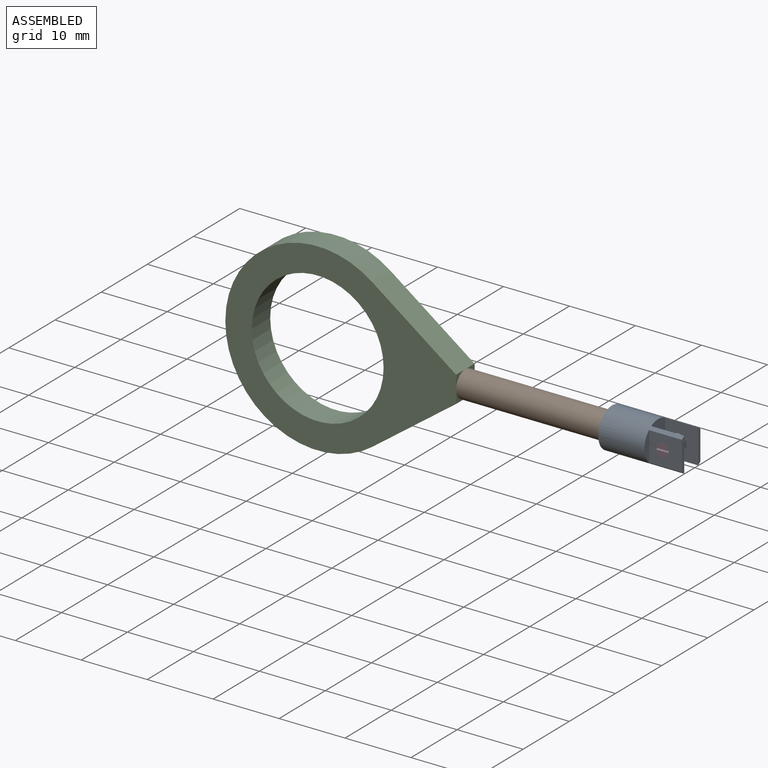
[diagram: assembled view]
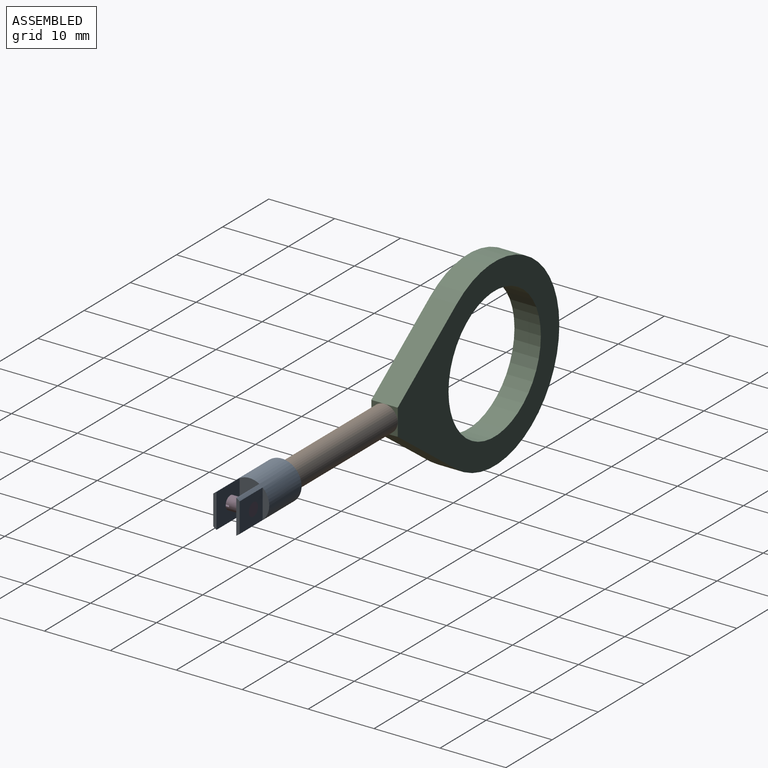
[diagram: assembled view, second angle]
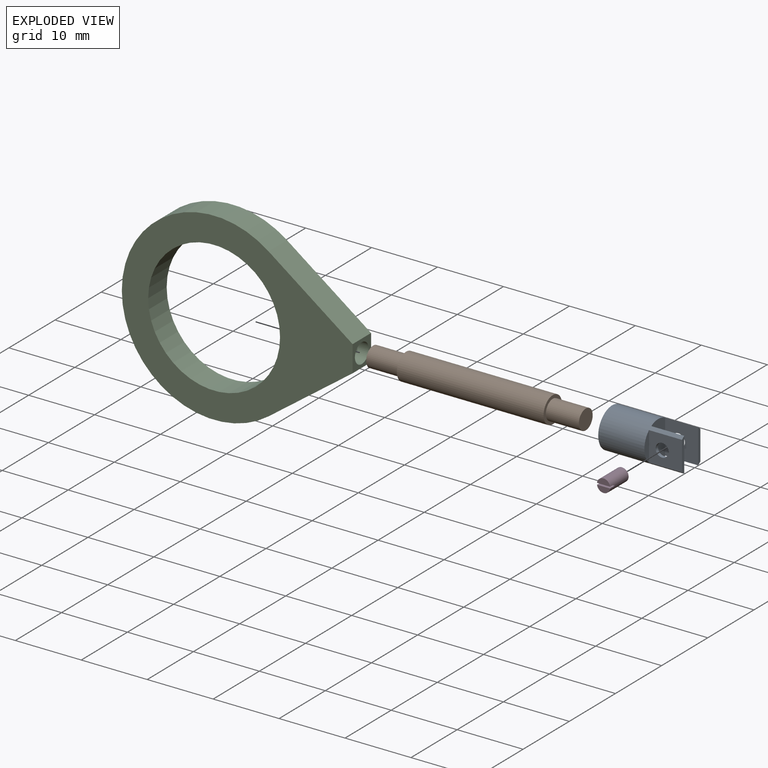
[diagram: exploded view]
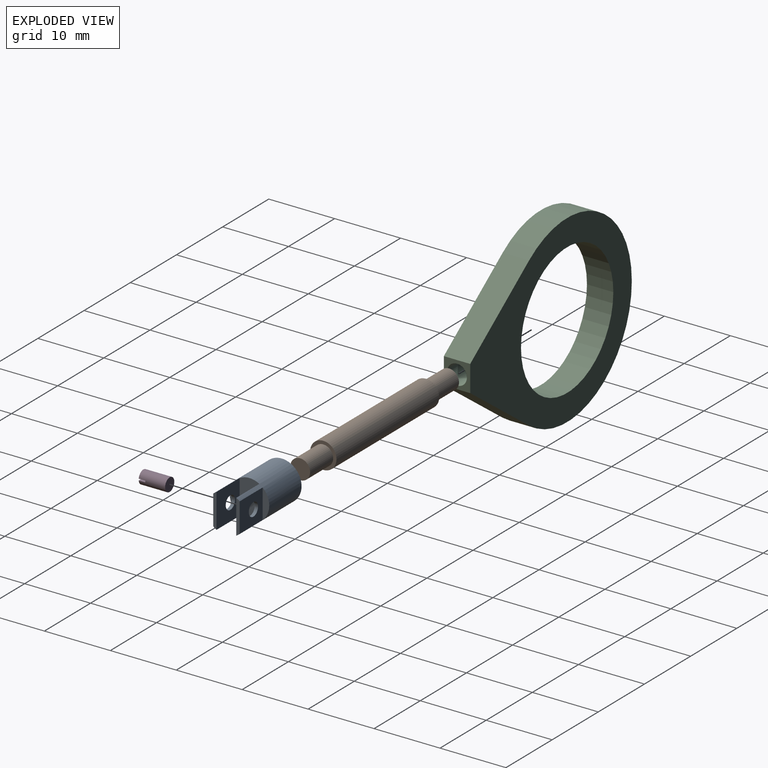
[diagram: exploded view, second angle]
ASSEMBLY  parts=4 mates=3
PART A: 15 faces, bbox 6x12x6 mm
  f0: plane 6x3mm, normal (0,-1,0), area 17.2mm2, adj f2,f5,f8
  f1: plane 4.47x1mm, normal (0,-1,0), area 3.1mm2, adj f2,f6
  f2: cylinder r=3mm len=12mm, axis (0,-1,0), area 144.3mm2, adj f0,f1,f3,f4,f5,f6,f7,f8
  f3: plane 6x6mm, normal (0,1,0), area 21.2mm2, adj f2,f13
  f4: plane 4.47x1mm, normal (0,-1,0), area 3.1mm2, adj f2,f9
  f5: plane 5.2x5mm, normal (0,0,-1), area 22.8mm2, adj f0,f2,f7,f12
  f6: plane 5x4.47mm, normal (0,0,1), area 19.2mm2, adj f1,f2,f7,f12
  f7: plane 5.2x0.5mm, normal (0,-1,0), area 2.4mm2, adj f2,f5,f6
  f8: plane 5.2x5mm, normal (0,0,1), area 22.8mm2, adj f0,f2,f10,f11
  f9: plane 5x4.47mm, normal (0,0,-1), area 19.2mm2, adj f2,f4,f10,f11
  f10: plane 5.2x0.5mm, normal (0,-1,0), area 2.4mm2, adj f2,f8,f9
  f11: cylinder r=1mm len=2mm, axis (0,0,-1), area 3.1mm2, adj f8,f9
  f12: cylinder r=1mm len=2mm, axis (0,0,-1), area 3.1mm2, adj f5,f6
  f13: cylinder r=1.5mm len=5mm, axis (0,1,0), area 47.1mm2, adj f3,f14
  f14: plane 3x3mm, normal (0,1,0), area 7.1mm2, adj f13
PART B: 7 faces, bbox 4x32.3x4 mm
  f0: cylinder r=2mm len=22.25mm, axis (0,-1,0), area 279.6mm2, adj f1,f2
  f1: plane 4x4mm, normal (0,1,0), area 5.5mm2, adj f0,f5
  f2: plane 4x4mm, normal (0,-1,0), area 5.5mm2, adj f0,f3
  f3: cylinder r=1.5mm len=5mm, axis (0,1,0), area 47.1mm2, adj f2,f4
  f4: plane 3x3mm, normal (0,-1,0), area 7.1mm2, adj f3
  f5: cylinder r=1.5mm len=5mm, axis (0,-1,0), area 47.1mm2, adj f1,f6
  f6: plane 3x3mm, normal (0,1,0), area 7.1mm2, adj f5
PART C: 8 faces, bbox 35x4x28 mm
  f0: plane 4x4mm, normal (1,0,0), area 8.9mm2, adj f1,f4,f5,f6,f7
  f1: plane 12.74x9.31mm, normal (0.59,0,0.81), area 63.1mm2, adj f0,f2,f5,f6
  f2: cylinder r=14mm len=28mm, axis (0,1,0), area 246.6mm2, adj f1,f4,f5,f6
  f3: cylinder r=10mm len=20mm, axis (0,1,0), area 244.2mm2, adj f5,f6,f7
  f4: plane 12.74x9.31mm, normal (0.59,0,-0.81), area 63.1mm2, adj f0,f2,f5,f6
  f5: plane 35x28mm, normal (0,-1,0), area 380.3mm2, adj f0,f1,f2,f3,f4
  f6: plane 35x28mm, normal (0,1,0), area 380.3mm2, adj f0,f1,f2,f3,f4
  f7: cylinder r=1.5mm len=11.11mm, axis (1,0,0), area 104.2mm2, adj f0,f3
PART D: 7 faces, bbox 2x4x2 mm
  f0: cylinder r=1mm len=4mm, axis (0,-1,0), area 24.6mm2, adj f1,f2,f3,f4,f5,f6
  f1: plane 1.98x0.88mm, normal (0,-1,0), area 1.3mm2, adj f0,f4
  f2: plane 2x2mm, normal (0,1,0), area 3.1mm2, adj f0
  f3: plane 1.98x0.88mm, normal (0,-1,0), area 1.3mm2, adj f0,f5
  f4: plane 1.98x1mm, normal (0,0,1), area 2mm2, adj f0,f1,f6
  f5: plane 1.98x1mm, normal (0,0,-1), area 2mm2, adj f0,f3,f6
  f6: plane 2x0.25mm, normal (0,-1,0), area 0.5mm2, adj f0,f4,f5
PLACE A rot(axis=(-0.58,0.58,0.58),120deg) t=(50.34,45.47,-43.41)mm
PLACE B rot(axis=(0,0,-1),90deg) t=(21.09,-2.66,-13.03)mm
PLACE C t=(0.09,-2.66,36.62)mm
PLACE D t=(92.38,-4.66,-43.41)mm
MATE fastened C.f7 <-> B.f0  axis (1,0,0) through (21.09,-2.66,-43.41)mm
MATE fastened A.f2 <-> B.f0  axis (-1,0,0) through (43.34,-2.66,-43.41)mm
MATE fastened A.f11 <-> D.f0  axis (0,-1,0) through (52.34,-4.66,-43.41)mm
